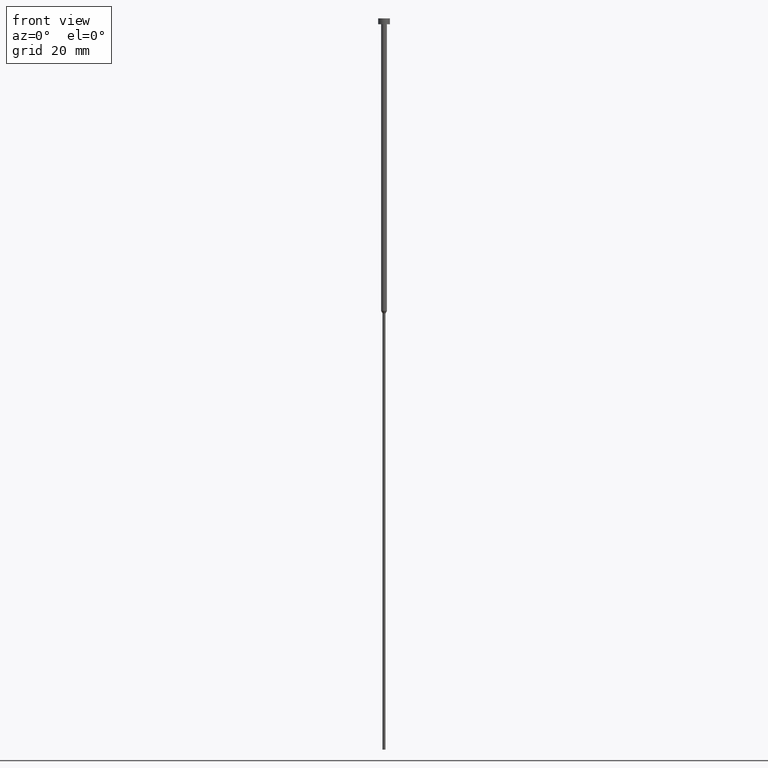
[diagram: clean part render]
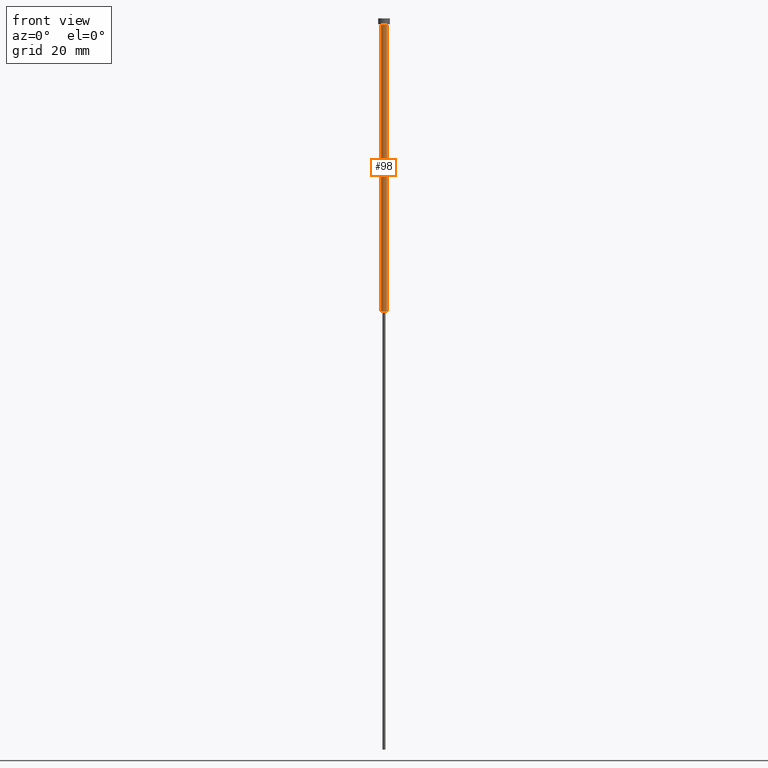
[diagram: same view with one face highlighted and labeled with its STEP entity id]
A machine part, front view. The second image highlights one B-rep face of the part: STEP entity #98.
In plain terms, the highlighted cylindrical surface (edge-blend (fillet) strip) has radius 1 mm, axis along (-0, -0, 1).
Its self-contained STEP definition (entity closure, byte-faithful):
#5 = DIRECTION ( 'NONE',  ( -0.000000000000000000, -0.000000000000000000, 1.000000000000000000 ) ) ;
#15 = EDGE_CURVE ( 'NONE', #74, #40, #111, .T. ) ;
#19 = ORIENTED_EDGE ( 'NONE', *, *, #173, .F. ) ;
#22 = CIRCLE ( 'NONE', #43, 1.000000000000003109 ) ;
#31 = CARTESIAN_POINT ( 'NONE',  ( -1.000000000000003331, 1.224646799147357151E-16, 0.000000000000000000 ) ) ;
#40 = VERTEX_POINT ( 'NONE', #81 ) ;
#43 = AXIS2_PLACEMENT_3D ( 'NONE', #67, #5, #197 ) ;
#50 = VECTOR ( 'NONE', #119, 1000.000000000000000 ) ;
#60 = CARTESIAN_POINT ( 'NONE',  ( -1.000000000000003109, 1.224646799147356905E-16, -100.0000000000000000 ) ) ;
#62 = LINE ( 'NONE', #31, #50 ) ;
#67 = CARTESIAN_POINT ( 'NONE',  ( 0.000000000000000000, 0.000000000000000000, -100.0000000000000000 ) ) ;
#74 = VERTEX_POINT ( 'NONE', #165 ) ;
#81 = CARTESIAN_POINT ( 'NONE',  ( 1.000000000000003553, 0.000000000000000000, -2.000000000000000444 ) ) ;
#85 = DIRECTION ( 'NONE',  ( 1.000000000000000000, 0.000000000000000000, 0.000000000000000000 ) ) ;
#97 = DIRECTION ( 'NONE',  ( 1.000000000000000000, 0.000000000000000000, 0.000000000000000000 ) ) ;
#98 = ADVANCED_FACE ( 'NONE', ( #325 ), #137, .T. ) ;
#111 = LINE ( 'NONE', #350, #238 ) ;
#113 = CIRCLE ( 'NONE', #313, 1.000000000000003553 ) ;
#119 = DIRECTION ( 'NONE',  ( -0.000000000000000000, -0.000000000000000000, 1.000000000000000000 ) ) ;
#137 = CYLINDRICAL_SURFACE ( 'NONE', #340, 1.000000000000003331 ) ;
#149 = ORIENTED_EDGE ( 'NONE', *, *, #15, .T. ) ;
#151 = EDGE_LOOP ( 'NONE', ( #19, #176, #149, #290 ) ) ;
#165 = CARTESIAN_POINT ( 'NONE',  ( 1.000000000000003109, 0.000000000000000000, -100.0000000000000000 ) ) ;
#173 = EDGE_CURVE ( 'NONE', #204, #314, #62, .T. ) ;
#176 = ORIENTED_EDGE ( 'NONE', *, *, #282, .T. ) ;
#197 = DIRECTION ( 'NONE',  ( 1.000000000000000000, 0.000000000000000000, 0.000000000000000000 ) ) ;
#204 = VERTEX_POINT ( 'NONE', #60 ) ;
#205 = EDGE_CURVE ( 'NONE', #314, #40, #113, .T. ) ;
#222 = DIRECTION ( 'NONE',  ( -0.000000000000000000, -0.000000000000000000, 1.000000000000000000 ) ) ;
#238 = VECTOR ( 'NONE', #241, 1000.000000000000000 ) ;
#241 = DIRECTION ( 'NONE',  ( -0.000000000000000000, -0.000000000000000000, 1.000000000000000000 ) ) ;
#247 = CARTESIAN_POINT ( 'NONE',  ( 0.000000000000000000, 0.000000000000000000, 0.000000000000000000 ) ) ;
#278 = CARTESIAN_POINT ( 'NONE',  ( -1.000000000000003553, 1.224646799147357398E-16, -2.000000000000000444 ) ) ;
#282 = EDGE_CURVE ( 'NONE', #204, #74, #22, .T. ) ;
#290 = ORIENTED_EDGE ( 'NONE', *, *, #205, .F. ) ;
#307 = CARTESIAN_POINT ( 'NONE',  ( 0.000000000000000000, 0.000000000000000000, -2.000000000000000444 ) ) ;
#313 = AXIS2_PLACEMENT_3D ( 'NONE', #307, #222, #97 ) ;
#314 = VERTEX_POINT ( 'NONE', #278 ) ;
#325 = FACE_OUTER_BOUND ( 'NONE', #151, .T. ) ;
#340 = AXIS2_PLACEMENT_3D ( 'NONE', #247, #351, #85 ) ;
#350 = CARTESIAN_POINT ( 'NONE',  ( 1.000000000000003331, 0.000000000000000000, 0.000000000000000000 ) ) ;
#351 = DIRECTION ( 'NONE',  ( -0.000000000000000000, -0.000000000000000000, 1.000000000000000000 ) ) ;